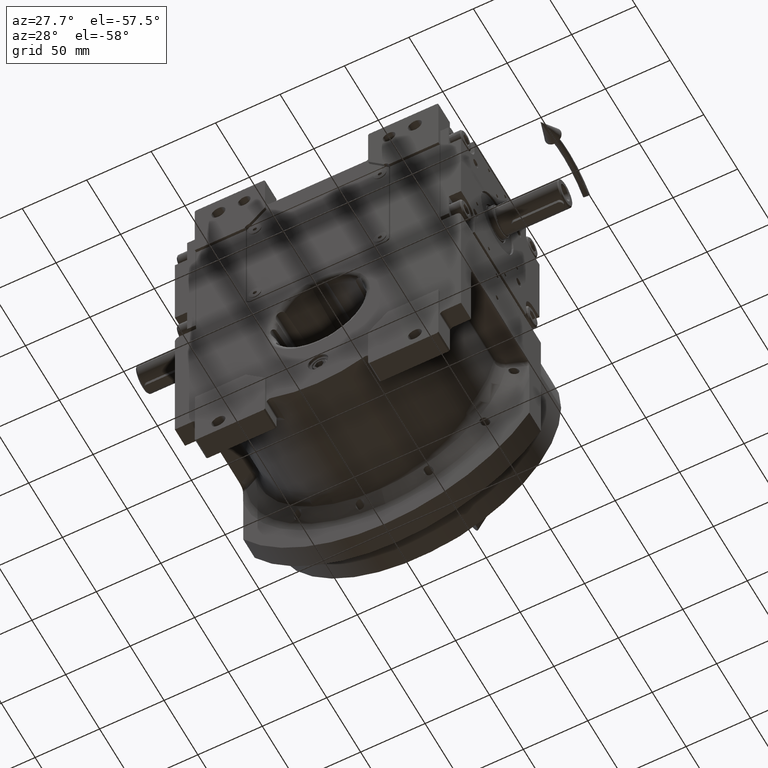
[diagram: clean part render]
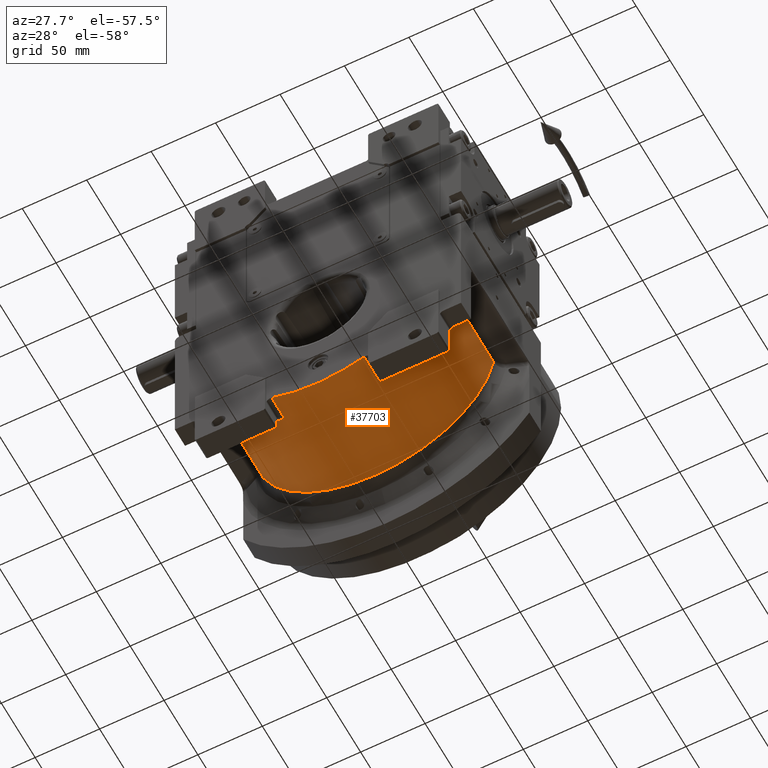
[diagram: same view with one face highlighted and labeled with its STEP entity id]
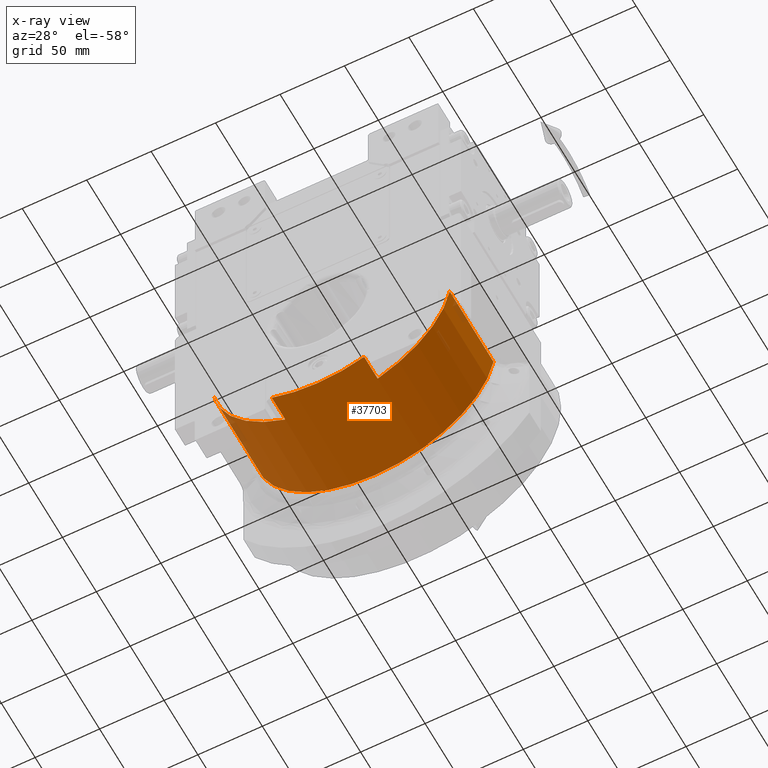
[diagram: x-ray of the same camera — body ghosted, the highlighted face saturated]
A machine part, auxiliary view. The second image highlights one B-rep face of the part: STEP entity #37703.
The next image is the same camera in x-ray: the body ghosted, the highlighted face saturated — about 2% of this face is hidden behind the body in this view.
In plain terms, the highlighted cylindrical surface (partial cylindrical patch) has radius 93 mm, axis along (0, 1, 0).
Its self-contained STEP definition (entity closure, byte-faithful):
#716 = VERTEX_POINT ( 'NONE', #30926 ) ;
#1029 = AXIS2_PLACEMENT_3D ( 'NONE', #52776, #52451, #63161 ) ;
#2439 = CARTESIAN_POINT ( 'NONE',  ( 91.75016228514499517, -33.50000000000000000, -15.19564808257825028 ) ) ;
#3110 = DIRECTION ( 'NONE',  ( 0.000000000000000000, 1.000000000000000000, 0.000000000000000000 ) ) ;
#4825 = LINE ( 'NONE', #32117, #56227 ) ;
#4940 = ORIENTED_EDGE ( 'NONE', *, *, #5729, .T. ) ;
#5729 = EDGE_CURVE ( 'NONE', #67234, #7395, #4825, .T. ) ;
#5963 = EDGE_CURVE ( 'NONE', #49385, #45008, #14274, .T. ) ;
#6747 = CARTESIAN_POINT ( 'NONE',  ( -91.75030103113060420, 31.21878279875124917, -15.19503959111690072 ) ) ;
#6818 = AXIS2_PLACEMENT_3D ( 'NONE', #24507, #49738, #60113 ) ;
#6824 = ORIENTED_EDGE ( 'NONE', *, *, #51413, .F. ) ;
#6960 = DIRECTION ( 'NONE',  ( 0.000000000000000000, -1.000000000000000000, 0.000000000000000000 ) ) ;
#7395 = VERTEX_POINT ( 'NONE', #28269 ) ;
#8399 = CARTESIAN_POINT ( 'NONE',  ( 35.84375000000000000, -33.50000000000000000, -85.81506619433150718 ) ) ;
#8629 = LINE ( 'NONE', #29082, #28195 ) ;
#11242 = ORIENTED_EDGE ( 'NONE', *, *, #33663, .T. ) ;
#12272 = ORIENTED_EDGE ( 'NONE', *, *, #35660, .T. ) ;
#13253 = VECTOR ( 'NONE', #24212, 1000.000000000000000 ) ;
#13853 = AXIS2_PLACEMENT_3D ( 'NONE', #47921, #58274, #27530 ) ;
#14142 = CARTESIAN_POINT ( 'NONE',  ( 91.75016228501930016, 31.21878281274199907, -15.19564808333685058 ) ) ;
#14274 = CIRCLE ( 'NONE', #1029, 93.00000000000001421 ) ;
#17625 = FACE_OUTER_BOUND ( 'NONE', #44105, .T. ) ;
#20075 = CIRCLE ( 'NONE', #6818, 93.00000000000001421 ) ;
#20136 = EDGE_CURVE ( 'NONE', #67234, #63496, #56366, .T. ) ;
#22848 = CARTESIAN_POINT ( 'NONE',  ( -4.517455316885850268E-28, -53.50000000000000000, 0.000000000000000000 ) ) ;
#24212 = DIRECTION ( 'NONE',  ( 0.000000000000000000, -1.000000000000000000, 0.000000000000000000 ) ) ;
#24507 = CARTESIAN_POINT ( 'NONE',  ( -5.684341886080798963E-14, -33.50000000000000000, -4.973799150320699408E-14 ) ) ;
#24702 = LINE ( 'NONE', #45769, #63311 ) ;
#25920 = DIRECTION ( 'NONE',  ( 1.776356839400250070E-15, 1.000000000000000000, -7.105427357601000281E-16 ) ) ;
#27530 = DIRECTION ( 'NONE',  ( 0.9865608847851539132, -1.678764654171103455E-15, -0.1633940654122239822 ) ) ;
#28195 = VECTOR ( 'NONE', #3110, 1000.000000000000000 ) ;
#28269 = CARTESIAN_POINT ( 'NONE',  ( -35.84375000000000000, -33.50000000000000000, -85.81506619433150718 ) ) ;
#28667 = ORIENTED_EDGE ( 'NONE', *, *, #50650, .T. ) ;
#29082 = CARTESIAN_POINT ( 'NONE',  ( -91.75016228501930016, -33.50000000000000000, -15.19564808333695183 ) ) ;
#30926 = CARTESIAN_POINT ( 'NONE',  ( 91.75016228501930016, 31.21878281274259948, -15.19564808333685058 ) ) ;
#31765 = ORIENTED_EDGE ( 'NONE', *, *, #20136, .F. ) ;
#32117 = CARTESIAN_POINT ( 'NONE',  ( -35.84375000000000000, -53.50000000000000000, -85.81506619433150718 ) ) ;
#32329 = CARTESIAN_POINT ( 'NONE',  ( 35.84375000000000000, -53.50000000000000000, -85.81506619433150718 ) ) ;
#32489 = VERTEX_POINT ( 'NONE', #45900 ) ;
#32535 = DIRECTION ( 'NONE',  ( 0.000000000000000000, 1.000000000000000000, 0.000000000000000000 ) ) ;
#33193 = AXIS2_PLACEMENT_3D ( 'NONE', #43234, #6960, #54657 ) ;
#33663 = EDGE_CURVE ( 'NONE', #7395, #32489, #20075, .T. ) ;
#35660 = EDGE_CURVE ( 'NONE', #45008, #63496, #24702, .T. ) ;
#37703 = ADVANCED_FACE ( 'NONE', ( #17625 ), #43212, .T. ) ;
#37918 = ORIENTED_EDGE ( 'NONE', *, *, #5963, .T. ) ;
#39235 = AXIS2_PLACEMENT_3D ( 'NONE', #22848, #32535, #59817 ) ;
#39550 = DIRECTION ( 'NONE',  ( 0.000000000000000000, -1.000000000000000000, 0.000000000000000000 ) ) ;
#43212 = CYLINDRICAL_SURFACE ( 'NONE', #39235, 93.00000000000000000 ) ;
#43234 = CARTESIAN_POINT ( 'NONE',  ( 1.421085471520200056E-14, -53.50000000000000000, -4.263256414560599853E-14 ) ) ;
#43607 = EDGE_CURVE ( 'NONE', #716, #49385, #67022, .T. ) ;
#43645 = CIRCLE ( 'NONE', #13853, 93.00000000000001421 ) ;
#44105 = EDGE_LOOP ( 'NONE', ( #31765, #4940, #11242, #28667, #6824, #56843, #37918, #12272 ) ) ;
#45008 = VERTEX_POINT ( 'NONE', #8399 ) ;
#45769 = CARTESIAN_POINT ( 'NONE',  ( 35.84375000000000000, -33.50000000000000000, -85.81506619433150718 ) ) ;
#45900 = CARTESIAN_POINT ( 'NONE',  ( -91.75016228508779648, -33.50000000000000000, -15.19564808292360070 ) ) ;
#47921 = CARTESIAN_POINT ( 'NONE',  ( 1.421085471520200056E-14, 31.21878281274215183, 0.000000000000000000 ) ) ;
#49385 = VERTEX_POINT ( 'NONE', #2439 ) ;
#49738 = DIRECTION ( 'NONE',  ( 0.000000000000000000, 1.000000000000000000, 0.000000000000000000 ) ) ;
#50105 = VERTEX_POINT ( 'NONE', #6747 ) ;
#50650 = EDGE_CURVE ( 'NONE', #32489, #50105, #8629, .T. ) ;
#51413 = EDGE_CURVE ( 'NONE', #716, #50105, #43645, .T. ) ;
#52451 = DIRECTION ( 'NONE',  ( 0.000000000000000000, 1.000000000000000000, 0.000000000000000000 ) ) ;
#52776 = CARTESIAN_POINT ( 'NONE',  ( 1.421085471520200056E-14, -33.50000000000000000, 1.421085471520200056E-14 ) ) ;
#54657 = DIRECTION ( 'NONE',  ( -0.3854166666666672403, 0.000000000000000000, -0.9227426472508764022 ) ) ;
#56227 = VECTOR ( 'NONE', #25920, 1000.000000000000000 ) ;
#56366 = CIRCLE ( 'NONE', #33193, 92.99999999999995737 ) ;
#56843 = ORIENTED_EDGE ( 'NONE', *, *, #43607, .T. ) ;
#58274 = DIRECTION ( 'NONE',  ( 5.743225055535190204E-15, 1.000000000000000000, 2.439003765979129920E-14 ) ) ;
#59817 = DIRECTION ( 'NONE',  ( 0.000000000000000000, 0.000000000000000000, 1.000000000000000000 ) ) ;
#60113 = DIRECTION ( 'NONE',  ( -0.3854166666666659080, 0.000000000000000000, -0.9227426472508768462 ) ) ;
#62767 = CARTESIAN_POINT ( 'NONE',  ( -35.84375000000000000, -53.50000000000000000, -85.81506619433150718 ) ) ;
#63161 = DIRECTION ( 'NONE',  ( 0.9865608847878558629, 0.000000000000000000, -0.1633940653959109757 ) ) ;
#63311 = VECTOR ( 'NONE', #39550, 1000.000000000000000 ) ;
#63496 = VERTEX_POINT ( 'NONE', #32329 ) ;
#67022 = LINE ( 'NONE', #14142, #13253 ) ;
#67234 = VERTEX_POINT ( 'NONE', #62767 ) ;